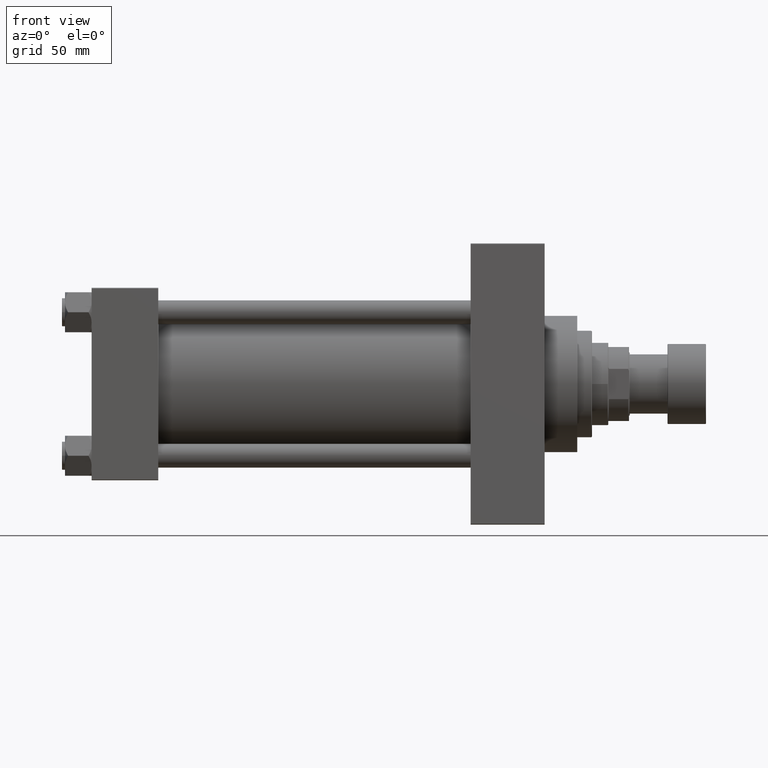
[diagram: clean part render]
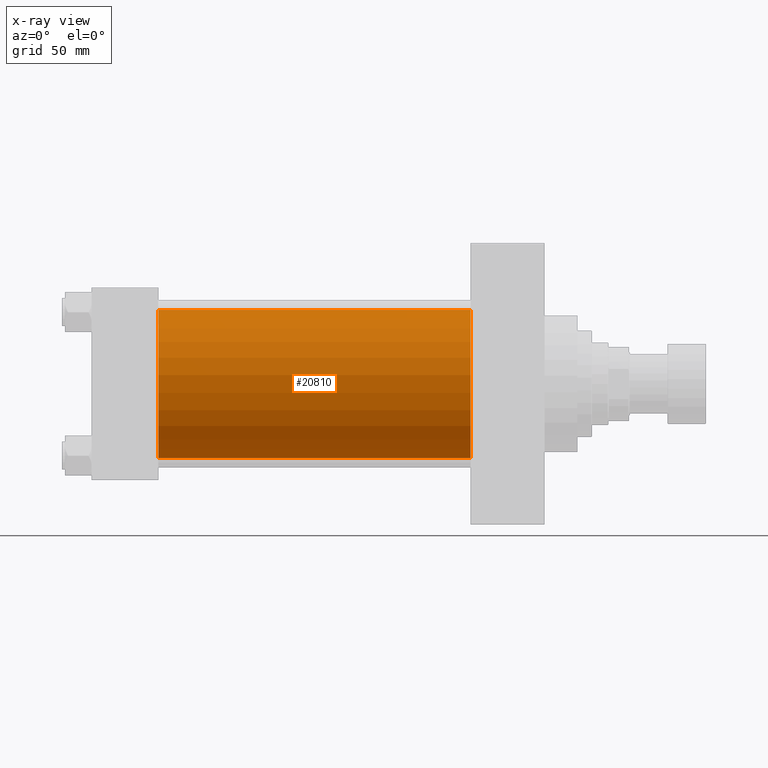
[diagram: x-ray — body ghosted, one internal face saturated and labeled with its STEP entity id]
A machine part, front view, then the same camera in x-ray: the body is ghosted and one INTERNAL B-rep face — a face not visible from any outside direction — is saturated and labeled: STEP entity #20810.
In plain terms, the highlighted cylindrical surface (partial cylindrical patch) has radius 50 mm, axis along (-1, -0, -0).
Its self-contained STEP definition (entity closure, byte-faithful):
#39 = CYLINDRICAL_SURFACE ( 'NONE', #38695, 50.00000000000000000 ) ;
#646 = VECTOR ( 'NONE', #9607, 1000.000000000000000 ) ;
#3800 = CARTESIAN_POINT ( 'NONE',  ( 256.0000000000000000, -2.602085213965210642E-15, 50.00000000000000000 ) ) ;
#4159 = AXIS2_PLACEMENT_3D ( 'NONE', #23255, #11824, #46929 ) ;
#6878 = EDGE_CURVE ( 'NONE', #16031, #42984, #26115, .T. ) ;
#7017 = CARTESIAN_POINT ( 'NONE',  ( 256.0000000000000000, -2.602085213965210642E-15, 50.00000000000000000 ) ) ;
#8201 = ORIENTED_EDGE ( 'NONE', *, *, #31001, .F. ) ;
#9607 = DIRECTION ( 'NONE',  ( -1.000000000000000000, -0.000000000000000000, -0.000000000000000000 ) ) ;
#11824 = DIRECTION ( 'NONE',  ( 1.000000000000000000, 0.000000000000000000, 0.000000000000000000 ) ) ;
#11919 = VERTEX_POINT ( 'NONE', #49449 ) ;
#15324 = DIRECTION ( 'NONE',  ( -1.000000000000000000, -0.000000000000000000, -0.000000000000000000 ) ) ;
#16004 = AXIS2_PLACEMENT_3D ( 'NONE', #18344, #33864, #30043 ) ;
#16031 = VERTEX_POINT ( 'NONE', #43140 ) ;
#18344 = CARTESIAN_POINT ( 'NONE',  ( 256.0000000000000000, -2.602085213965210642E-15, 0.000000000000000000 ) ) ;
#18830 = LINE ( 'NONE', #3800, #50242 ) ;
#20599 = ORIENTED_EDGE ( 'NONE', *, *, #26548, .T. ) ;
#20810 = ADVANCED_FACE ( 'NONE', ( #38975 ), #39, .F. ) ;
#20925 = ORIENTED_EDGE ( 'NONE', *, *, #32384, .T. ) ;
#22548 = ORIENTED_EDGE ( 'NONE', *, *, #6878, .F. ) ;
#23255 = CARTESIAN_POINT ( 'NONE',  ( 45.00000000000000000, -2.602085213965210642E-15, 0.000000000000000000 ) ) ;
#25732 = CIRCLE ( 'NONE', #16004, 50.00000000000000000 ) ;
#26115 = CIRCLE ( 'NONE', #4159, 50.00000000000000000 ) ;
#26548 = EDGE_CURVE ( 'NONE', #27970, #11919, #25732, .T. ) ;
#27546 = EDGE_LOOP ( 'NONE', ( #20599, #20925, #22548, #8201 ) ) ;
#27970 = VERTEX_POINT ( 'NONE', #7017 ) ;
#28199 = LINE ( 'NONE', #48535, #646 ) ;
#30043 = DIRECTION ( 'NONE',  ( 0.000000000000000000, 0.000000000000000000, -1.000000000000000000 ) ) ;
#31001 = EDGE_CURVE ( 'NONE', #27970, #16031, #18830, .T. ) ;
#32384 = EDGE_CURVE ( 'NONE', #11919, #42984, #28199, .T. ) ;
#33864 = DIRECTION ( 'NONE',  ( 1.000000000000000000, 0.000000000000000000, 0.000000000000000000 ) ) ;
#34908 = DIRECTION ( 'NONE',  ( 0.000000000000000000, 0.000000000000000000, 1.000000000000000000 ) ) ;
#38418 = DIRECTION ( 'NONE',  ( -1.000000000000000000, -0.000000000000000000, -0.000000000000000000 ) ) ;
#38695 = AXIS2_PLACEMENT_3D ( 'NONE', #38724, #15324, #34908 ) ;
#38724 = CARTESIAN_POINT ( 'NONE',  ( 256.0000000000000000, -2.602085213965210642E-15, 0.000000000000000000 ) ) ;
#38975 = FACE_OUTER_BOUND ( 'NONE', #27546, .T. ) ;
#42984 = VERTEX_POINT ( 'NONE', #47134 ) ;
#43140 = CARTESIAN_POINT ( 'NONE',  ( 45.00000000000000000, -2.602085213965210642E-15, 50.00000000000000000 ) ) ;
#46929 = DIRECTION ( 'NONE',  ( 0.000000000000000000, 0.000000000000000000, -1.000000000000000000 ) ) ;
#47134 = CARTESIAN_POINT ( 'NONE',  ( 45.00000000000000000, 3.521148781771555838E-15, -50.00000000000000000 ) ) ;
#48535 = CARTESIAN_POINT ( 'NONE',  ( 256.0000000000000000, 3.521148781771555838E-15, -50.00000000000000000 ) ) ;
#49449 = CARTESIAN_POINT ( 'NONE',  ( 256.0000000000000000, 3.521148781771555838E-15, -50.00000000000000000 ) ) ;
#50242 = VECTOR ( 'NONE', #38418, 1000.000000000000000 ) ;